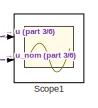
[diagram: root canvas - part 1/6, top left region]
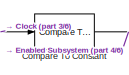
[diagram: root canvas - part 2/6, top center region]
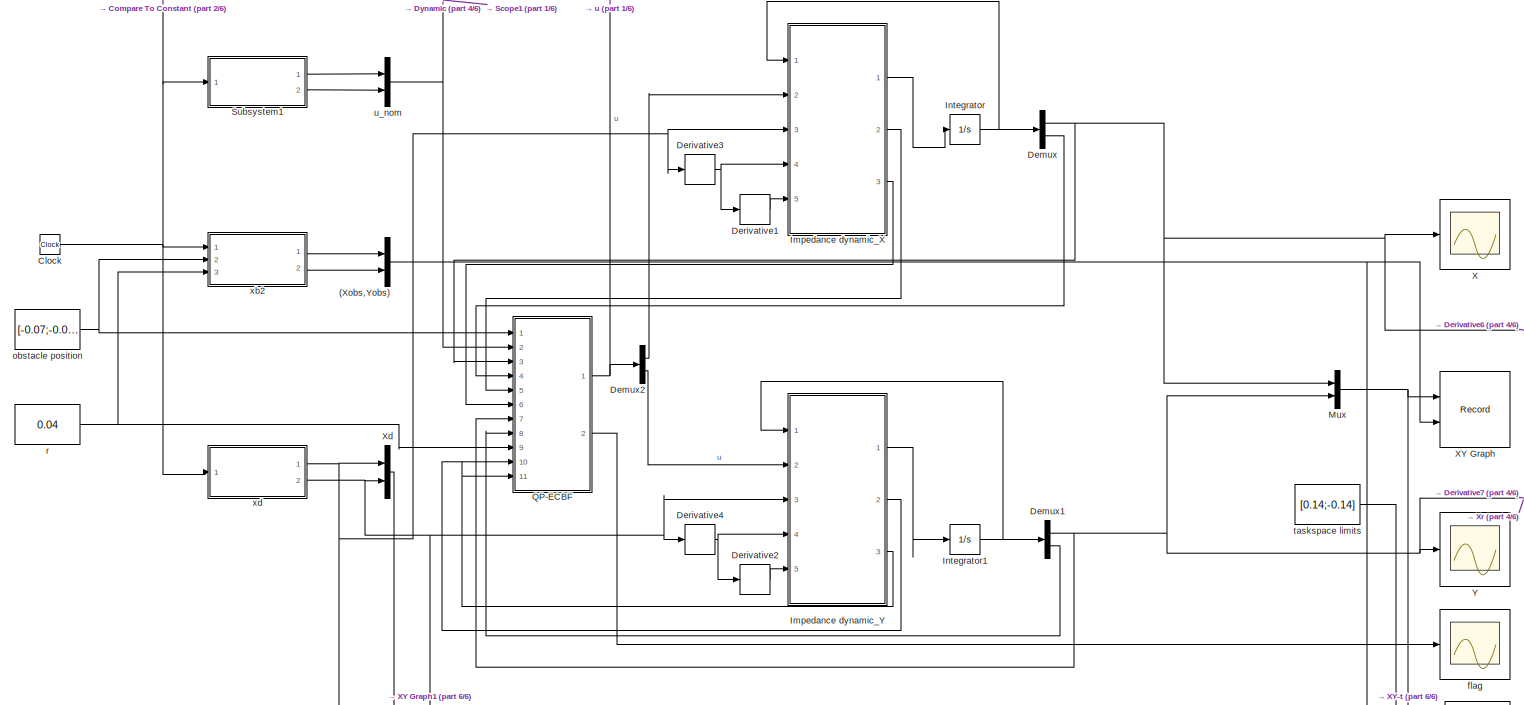
[diagram: root canvas - part 3/6, middle left region]
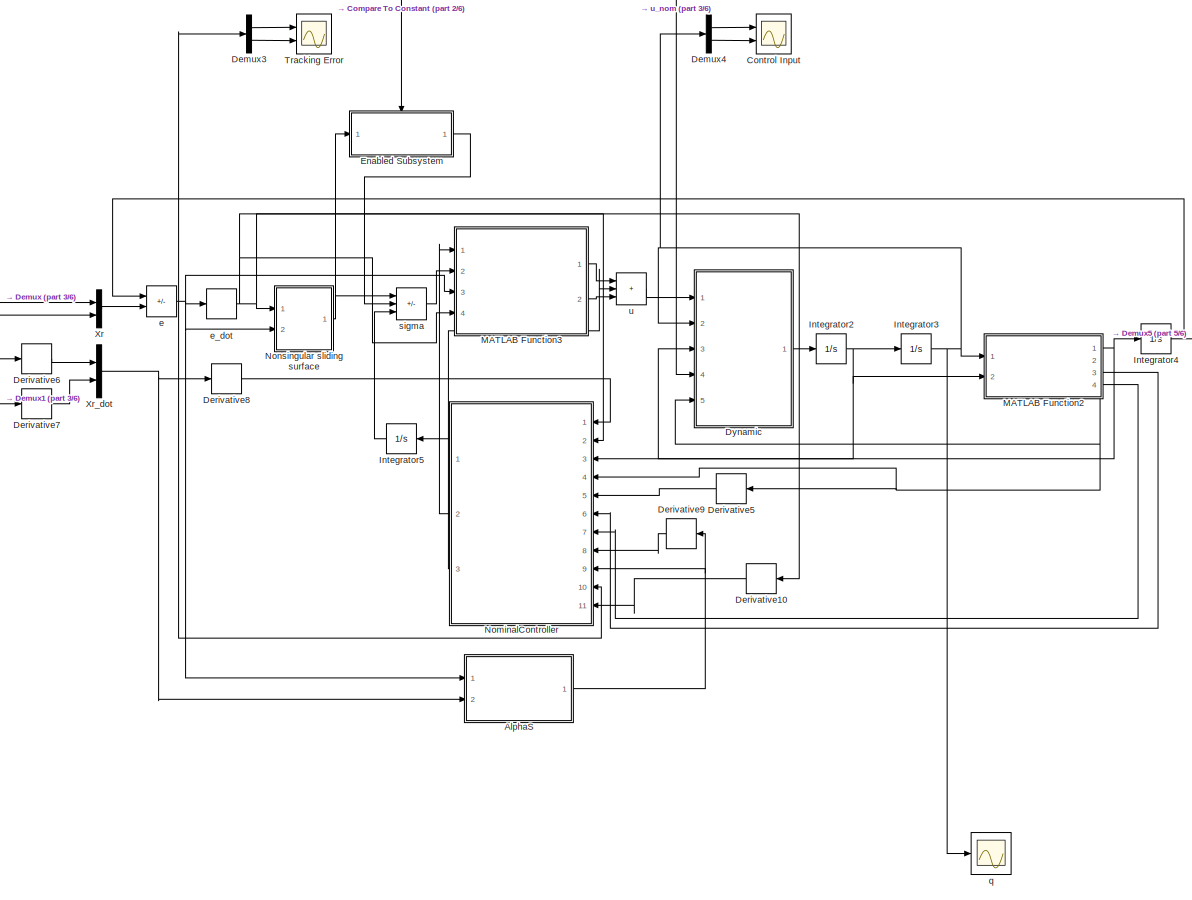
[diagram: root canvas - part 4/6, right side, full height]
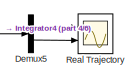
[diagram: root canvas - part 5/6, middle right region]
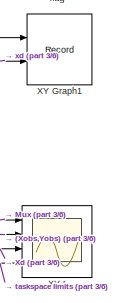
[diagram: root canvas - part 6/6, bottom center region]
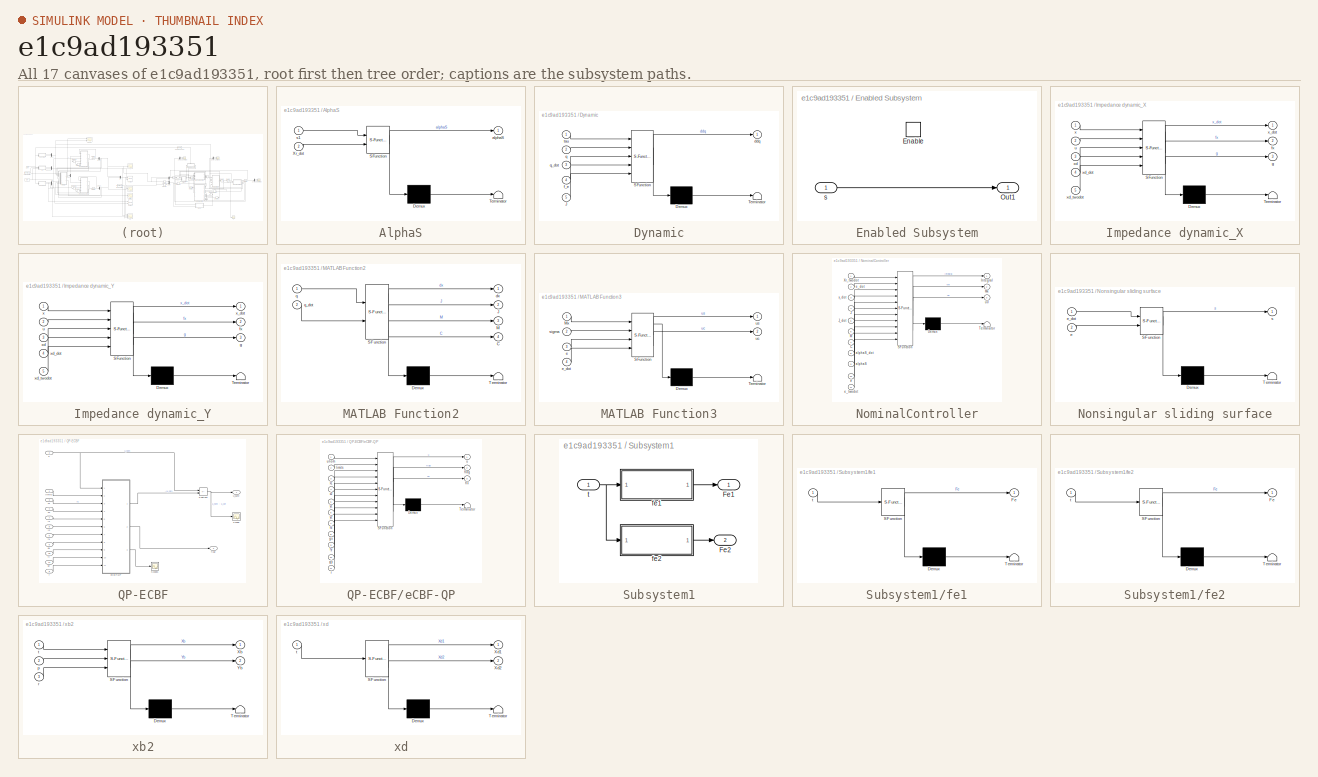
[diagram: thumbnail index - all 17 canvases of the model, root first then tree order]
MODEL slx_e1c9ad193351
KIND model
CONFIG AbsTol = auto
CONFIG EnableMultiTasking = off
CONFIG FixedStep = 0.01
CONFIG MaxStep = auto
CONFIG MinStep = auto
CONFIG RelTol = 1e-3
CONFIG SampleTimeConstraint = Unconstrained
CONFIG SolverName = ode4
CONFIG StartTime = 0.0
CONFIG StopTime = 30
BLOCK [Scope]  Tracking Error
  Floating = off
  NumInputPorts = 2
  Ports = [2]
  ScopeSpecificationString = Simulink.scopes.TimeScopeBlockCfg('CurrentConfiguration', extmgr.ConfigurationSet(extmgr.Configuration('Core','General UI',true),extmgr.Configuration('Core','Source UI',true),extmgr.Configuration('Sources','WiredSimulink',true,'DataLoggingVariableName','ScopeData1','DataLogging',true,'DataLoggingSaveFormat','StructureWithTime'),extmgr.Configuration('Visuals','Time Domain',true,'SerializedDisplays'...<+1520ch>
BLOCK [Mux] (Xobs,Yobs)
  DisplayOption = bar
  Inputs = 2
  NameLocation = left
  Ports = [2, 1]
BLOCK [SubSystem] AlphaS
  ErrorFcn = Stateflow.Translate.translate
  PermitHierarchicalResolution = ExplicitOnly
  Ports = [2, 1]
  RequestExecContextInheritance = off
  SFBlockType = MATLAB Function
  TreatAsAtomicUnit = on
BLOCK [Demux] AlphaS/ Demux 
  Outputs = 1
  Ports = [1, 1]
BLOCK [S-Function] AlphaS/ SFunction 
  EnableBusSupport = on
  FunctionName = sf_sfun
  PortCounts = [2 2]
  Ports = [2, 2]
  SFcnIsStateOwnerBlock = off
  SFunctionDeploymentMode = off
  Tag = Stateflow S-Function 9
BLOCK [Terminator] AlphaS/ Terminator 
BLOCK [Inport] AlphaS/Xr_dot
  Port = 2
BLOCK [Outport] AlphaS/alphaS
BLOCK [Inport] AlphaS/s1
BLOCK [Clock] Clock
BLOCK [Reference] Compare To Constant  REF=simulink/Logic and Bit
Operations/Compare
To Constant
  Ports = [1, 1]
  SourceBlock = simulink/Logic and Bit\nOperations/Compare\nTo Constant
  SourceProductBaseCode = SL
  SourceType = Compare To Constant
BLOCK [Scope] Control Input
  Floating = off
  NumInputPorts = 2
  Ports = [2]
  ScopeSpecificationString = Simulink.scopes.TimeScopeBlockCfg('CurrentConfiguration', extmgr.ConfigurationSet(extmgr.Configuration('Core','General UI',true),extmgr.Configuration('Core','Source UI',true),extmgr.Configuration('Sources','WiredSimulink',true,'DataLoggingVariableName','ScopeData2','DataLogging',true,'DataLoggingSaveFormat','StructureWithTime'),extmgr.Configuration('Visuals','Time Domain',true,'SerializedDisplays'...<+1522ch>
BLOCK [Demux] Demux
  Outputs = 2
  Ports = [1, 2]
BLOCK [Demux] Demux1
  Outputs = 2
  Ports = [1, 2]
BLOCK [Demux] Demux2
  Outputs = 2
  Ports = [1, 2]
BLOCK [Demux] Demux3
  Outputs = 2
  Ports = [1, 2]
BLOCK [Demux] Demux4
  Outputs = 2
  Ports = [1, 2]
BLOCK [Demux] Demux5
  Outputs = 2
  Ports = [1, 2]
BLOCK [Derivative] Derivative1
BLOCK [Derivative] Derivative10
  NameLocation = top
BLOCK [Derivative] Derivative2
BLOCK [Derivative] Derivative3
BLOCK [Derivative] Derivative4
BLOCK [Derivative] Derivative5
  NameLocation = top
BLOCK [Derivative] Derivative6
BLOCK [Derivative] Derivative7
BLOCK [Derivative] Derivative8
BLOCK [Derivative] Derivative9
  NameLocation = top
BLOCK [SubSystem] Dynamic
  ErrorFcn = Stateflow.Translate.translate
  PermitHierarchicalResolution = ExplicitOnly
  Ports = [5, 1]
  RequestExecContextInheritance = off
  SFBlockType = MATLAB Function
  TreatAsAtomicUnit = on
BLOCK [Demux] Dynamic/ Demux 
  Outputs = 1
  Ports = [1, 1]
BLOCK [S-Function] Dynamic/ SFunction 
  EnableBusSupport = on
  FunctionName = sf_sfun
  PortCounts = [5 2]
  Ports = [5, 2]
  SFcnIsStateOwnerBlock = off
  SFunctionDeploymentMode = off
  Tag = Stateflow S-Function 3
BLOCK [Terminator] Dynamic/ Terminator 
BLOCK [Inport] Dynamic/J
  Port = 5
BLOCK [Outport] Dynamic/ddq
BLOCK [Inport] Dynamic/f_e
  Port = 4
BLOCK [Inport] Dynamic/q
  Port = 2
BLOCK [Inport] Dynamic/q_dot
  Port = 3
BLOCK [Inport] Dynamic/tau
BLOCK [SubSystem] Enabled Subsystem
  Ports = [1, 1, 1]
  RequestExecContextInheritance = off
  TreatAsAtomicUnit = on
BLOCK [EnablePort] Enabled Subsystem/Enable
  Ports = []
BLOCK [Outport] Enabled Subsystem/Out1
  InitialOutput = 0
  VectorParamsAs1DForOutWhenUnconnected = off
BLOCK [Inport] Enabled Subsystem/s
BLOCK [SubSystem] Impedance dynamic_X
  ErrorFcn = Stateflow.Translate.translate
  PermitHierarchicalResolution = ExplicitOnly
  Ports = [5, 3]
  RequestExecContextInheritance = off
  SFBlockType = MATLAB Function
  TreatAsAtomicUnit = on
BLOCK [Demux] Impedance dynamic_X/ Demux 
  Outputs = 1
  Ports = [1, 1]
BLOCK [S-Function] Impedance dynamic_X/ SFunction 
  EnableBusSupport = on
  FunctionName = sf_sfun
  PortCounts = [5 4]
  Ports = [5, 4]
  SFcnIsStateOwnerBlock = off
  SFunctionDeploymentMode = off
  Tag = Stateflow S-Function 7
BLOCK [Terminator] Impedance dynamic_X/ Terminator 
BLOCK [Outport] Impedance dynamic_X/fx
  Port = 2
BLOCK [Outport] Impedance dynamic_X/g
  Port = 3
BLOCK [Inport] Impedance dynamic_X/u
  Port = 2
BLOCK [Inport] Impedance dynamic_X/x
BLOCK [Outport] Impedance dynamic_X/x_dot
BLOCK [Inport] Impedance dynamic_X/xd
  Port = 3
BLOCK [Inport] Impedance dynamic_X/xd_dot
  Port = 4
BLOCK [Inport] Impedance dynamic_X/xd_twodot
  Port = 5
BLOCK [SubSystem] Impedance dynamic_Y
  ErrorFcn = Stateflow.Translate.translate
  PermitHierarchicalResolution = ExplicitOnly
  Ports = [5, 3]
  RequestExecContextInheritance = off
  SFBlockType = MATLAB Function
  TreatAsAtomicUnit = on
BLOCK [Demux] Impedance dynamic_Y/ Demux 
  Outputs = 1
  Ports = [1, 1]
BLOCK [S-Function] Impedance dynamic_Y/ SFunction 
  EnableBusSupport = on
  FunctionName = sf_sfun
  PortCounts = [5 4]
  Ports = [5, 4]
  SFcnIsStateOwnerBlock = off
  SFunctionDeploymentMode = off
  Tag = Stateflow S-Function 1
BLOCK [Terminator] Impedance dynamic_Y/ Terminator 
BLOCK [Outport] Impedance dynamic_Y/fx
  Port = 2
BLOCK [Outport] Impedance dynamic_Y/g
  Port = 3
BLOCK [Inport] Impedance dynamic_Y/u
  Port = 2
BLOCK [Inport] Impedance dynamic_Y/x
BLOCK [Outport] Impedance dynamic_Y/x_dot
BLOCK [Inport] Impedance dynamic_Y/xd
  Port = 3
BLOCK [Inport] Impedance dynamic_Y/xd_dot
  Port = 4
BLOCK [Inport] Impedance dynamic_Y/xd_twodot
  Port = 5
BLOCK [Integrator] Integrator
  InitialCondition = [0.14;0]
  Ports = [1, 1]
BLOCK [Integrator] Integrator1
  InitialCondition = [0;0]
  Ports = [1, 1]
BLOCK [Integrator] Integrator2
  Ports = [1, 1]
BLOCK [Integrator] Integrator3
  InitialCondition = [0.5236;2.0944]
  Ports = [1, 1]
BLOCK [Integrator] Integrator4
  InitialCondition = [0.14;0]
  Ports = [1, 1]
BLOCK [Integrator] Integrator5
  InitialCondition = [0.0001;0.0001]
  NameLocation = top
  Ports = [1, 1]
BLOCK [SubSystem] MATLAB Function2
  ErrorFcn = Stateflow.Translate.translate
  PermitHierarchicalResolution = ExplicitOnly
  Ports = [2, 4]
  RequestExecContextInheritance = off
  SFBlockType = MATLAB Function
  TreatAsAtomicUnit = on
BLOCK [Demux] MATLAB Function2/ Demux 
  Outputs = 1
  Ports = [1, 1]
BLOCK [S-Function] MATLAB Function2/ SFunction 
  EnableBusSupport = on
  FunctionName = sf_sfun
  PortCounts = [2 5]
  Ports = [2, 5]
  SFcnIsStateOwnerBlock = off
  SFunctionDeploymentMode = off
  Tag = Stateflow S-Function 8
BLOCK [Terminator] MATLAB Function2/ Terminator 
BLOCK [Outport] MATLAB Function2/C
  Port = 4
BLOCK [Outport] MATLAB Function2/J
  Port = 2
BLOCK [Outport] MATLAB Function2/M
  Port = 3
BLOCK [Outport] MATLAB Function2/dx
BLOCK [Inport] MATLAB Function2/q
BLOCK [Inport] MATLAB Function2/q_dot
  Port = 2
BLOCK [SubSystem] MATLAB Function3
  ErrorFcn = Stateflow.Translate.translate
  PermitHierarchicalResolution = ExplicitOnly
  Ports = [4, 2]
  RequestExecContextInheritance = off
  SFBlockType = MATLAB Function
  TreatAsAtomicUnit = on
BLOCK [Demux] MATLAB Function3/ Demux 
  Outputs = 1
  Ports = [1, 1]
BLOCK [S-Function] MATLAB Function3/ SFunction 
  EnableBusSupport = on
  FunctionName = sf_sfun
  PortCounts = [4 3]
  Ports = [4, 3]
  SFcnIsStateOwnerBlock = off
  SFunctionDeploymentMode = off
  Tag = Stateflow S-Function 10
BLOCK [Terminator] MATLAB Function3/ Terminator 
BLOCK [Inport] MATLAB Function3/Mx
BLOCK [Inport] MATLAB Function3/e
  Port = 3
BLOCK [Inport] MATLAB Function3/e_dot
  Port = 4
BLOCK [Inport] MATLAB Function3/sigma
  Port = 2
BLOCK [Outport] MATLAB Function3/uc
  Port = 2
BLOCK [Outport] MATLAB Function3/us
BLOCK [Mux] Mux
  DisplayOption = bar
  Inputs = 2
  Ports = [2, 1]
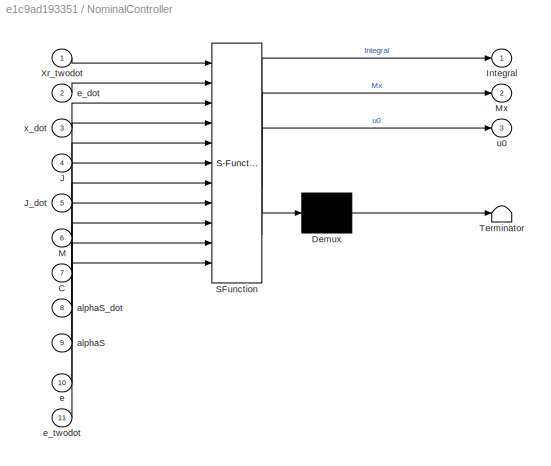
BLOCK [SubSystem] NominalController
  ErrorFcn = Stateflow.Translate.translate
  NameLocation = top
  PermitHierarchicalResolution = ExplicitOnly
  Ports = [11, 3]
  RequestExecContextInheritance = off
  SFBlockType = MATLAB Function
  TreatAsAtomicUnit = on
BLOCK [Demux] NominalController/ Demux 
  Outputs = 1
  Ports = [1, 1]
BLOCK [S-Function] NominalController/ SFunction 
  EnableBusSupport = on
  FunctionName = sf_sfun
  PortCounts = [11 4]
  Ports = [11, 4]
  SFcnIsStateOwnerBlock = off
  SFunctionDeploymentMode = off
  Tag = Stateflow S-Function 11
BLOCK [Terminator] NominalController/ Terminator 
BLOCK [Inport] NominalController/C
  Port = 7
BLOCK [Outport] NominalController/Integral
BLOCK [Inport] NominalController/J
  Port = 4
BLOCK [Inport] NominalController/J_dot
  Port = 5
BLOCK [Inport] NominalController/M
  Port = 6
BLOCK [Outport] NominalController/Mx
  Port = 2
BLOCK [Inport] NominalController/Xr_twodot
BLOCK [Inport] NominalController/alphaS
  Port = 9
BLOCK [Inport] NominalController/alphaS_dot
  Port = 8
BLOCK [Inport] NominalController/e
  Port = 10
BLOCK [Inport] NominalController/e_dot
  Port = 2
BLOCK [Inport] NominalController/e_twodot
  Port = 11
BLOCK [Outport] NominalController/u0
  Port = 3
BLOCK [Inport] NominalController/x_dot
  Port = 3
BLOCK [SubSystem] Nonsingular sliding surface
  ErrorFcn = Stateflow.Translate.translate
  PermitHierarchicalResolution = ExplicitOnly
  Ports = [2, 1]
  RequestExecContextInheritance = off
  SFBlockType = MATLAB Function
  TreatAsAtomicUnit = on
BLOCK [Demux] Nonsingular sliding surface/ Demux 
  Outputs = 1
  Ports = [1, 1]
BLOCK [S-Function] Nonsingular sliding surface/ SFunction 
  EnableBusSupport = on
  FunctionName = sf_sfun
  PortCounts = [2 2]
  Ports = [2, 2]
  SFcnIsStateOwnerBlock = off
  SFunctionDeploymentMode = off
  Tag = Stateflow S-Function 12
BLOCK [Terminator] Nonsingular sliding surface/ Terminator 
BLOCK [Inport] Nonsingular sliding surface/e
  Port = 2
BLOCK [Inport] Nonsingular sliding surface/e_dot
BLOCK [Outport] Nonsingular sliding surface/s
BLOCK [SubSystem] QP-ECBF
  Ports = [11, 2]
  RequestExecContextInheritance = off
BLOCK [Scope] QP-ECBF/Scope
  Floating = off
  NumInputPorts = 1
  Ports = [1]
  ScopeSpecificationString = Simulink.scopes.TimeScopeBlockCfg('CurrentConfiguration', extmgr.ConfigurationSet(extmgr.Configuration('Core','General UI',true),extmgr.Configuration('Core','Source UI',true),extmgr.Configuration('Sources','WiredSimulink',true,'DataLoggingVariableName','ScopeData1'),extmgr.Configuration('Visuals','Time Domain',true,'SerializedDisplays',{struct('MinYLimReal','-74.07676','MaxYLimReal','62.38981','YL...<+1473ch>
BLOCK [Scope] QP-ECBF/Scope1
  Floating = off
  NumInputPorts = 1
  Ports = [1]
  ScopeSpecificationString = Simulink.scopes.TimeScopeBlockCfg('CurrentConfiguration', extmgr.ConfigurationSet(extmgr.Configuration('Core','General UI',true),extmgr.Configuration('Core','Source UI',true),extmgr.Configuration('Sources','WiredSimulink',true,'DataLoggingVariableName','ScopeData2'),extmgr.Configuration('Visuals','Time Domain',true,'SerializedDisplays',{struct('MinYLimReal','-0.00755','MaxYLimReal','0.06731','YLab...<+1444ch>
BLOCK [Sum] QP-ECBF/Subtract
  IconShape = rectangular
  Inputs = +-
  Ports = [2, 1]
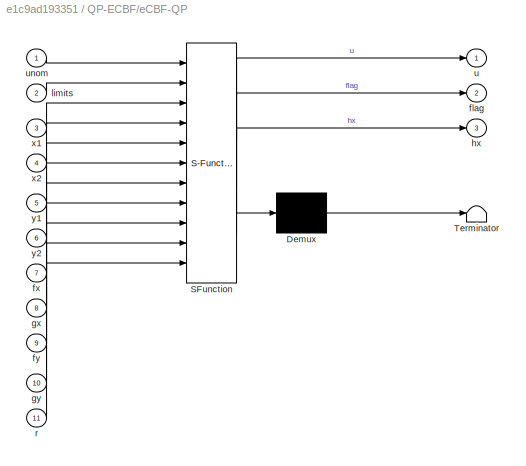
BLOCK [SubSystem] QP-ECBF/eCBF-QP
  ErrorFcn = Stateflow.Translate.translate
  PermitHierarchicalResolution = ExplicitOnly
  Ports = [11, 3]
  RequestExecContextInheritance = off
  SFBlockType = MATLAB Function
  TreatAsAtomicUnit = on
BLOCK [Demux] QP-ECBF/eCBF-QP/ Demux 
  Outputs = 1
  Ports = [1, 1]
BLOCK [S-Function] QP-ECBF/eCBF-QP/ SFunction 
  EnableBusSupport = on
  FunctionName = sf_sfun
  PortCounts = [11 4]
  Ports = [11, 4]
  SFcnIsStateOwnerBlock = off
  SFunctionDeploymentMode = off
  Tag = Stateflow S-Function 6
BLOCK [Terminator] QP-ECBF/eCBF-QP/ Terminator 
BLOCK [Outport] QP-ECBF/eCBF-QP/flag
  Port = 2
BLOCK [Inport] QP-ECBF/eCBF-QP/fx
  Port = 7
BLOCK [Inport] QP-ECBF/eCBF-QP/fy
  Port = 9
BLOCK [Inport] QP-ECBF/eCBF-QP/gx
  Port = 8
BLOCK [Inport] QP-ECBF/eCBF-QP/gy
  Port = 10
BLOCK [Outport] QP-ECBF/eCBF-QP/hx
  Port = 3
BLOCK [Inport] QP-ECBF/eCBF-QP/limits
  Port = 2
BLOCK [Inport] QP-ECBF/eCBF-QP/r
  Port = 11
BLOCK [Outport] QP-ECBF/eCBF-QP/u
BLOCK [Inport] QP-ECBF/eCBF-QP/unom
BLOCK [Inport] QP-ECBF/eCBF-QP/x1
  Port = 3
BLOCK [Inport] QP-ECBF/eCBF-QP/x2
  Port = 4
BLOCK [Inport] QP-ECBF/eCBF-QP/y1
  Port = 5
BLOCK [Inport] QP-ECBF/eCBF-QP/y2
  Port = 6
BLOCK [Outport] QP-ECBF/flag
  Port = 2
BLOCK [Inport] QP-ECBF/fx
  Port = 5
BLOCK [Inport] QP-ECBF/fy
  Port = 10
BLOCK [Inport] QP-ECBF/gx
  Port = 6
BLOCK [Inport] QP-ECBF/gy
  Port = 11
BLOCK [Inport] QP-ECBF/limits
  NameLocation = left
BLOCK [Inport] QP-ECBF/r
  Port = 9
BLOCK [Inport] QP-ECBF/u
  NameLocation = left
  Port = 2
BLOCK [Outport] QP-ECBF/u_safe
  NameLocation = right
BLOCK [Inport] QP-ECBF/x1
  Port = 3
BLOCK [Inport] QP-ECBF/x2
  Port = 4
BLOCK [Inport] QP-ECBF/y1
  Port = 7
BLOCK [Inport] QP-ECBF/y2
  Port = 8
BLOCK [Scope] Real Trajectory
  Floating = off
  NumInputPorts = 2
  Ports = [2]
  ScopeSpecificationString = Simulink.scopes.TimeScopeBlockCfg('CurrentConfiguration', extmgr.ConfigurationSet(extmgr.Configuration('Core','General UI',true),extmgr.Configuration('Core','Source UI',true),extmgr.Configuration('Sources','WiredSimulink',true,'DataLoggingVariableName','ScopeData6','DataLogging',true,'DataLoggingSaveFormat','StructureWithTime'),extmgr.Configuration('Visuals','Time Domain',true,'SerializedDisplays'...<+1514ch>
BLOCK [Scope] Scope1
  Floating = off
  NumInputPorts = 2
  Ports = [2]
  ScopeSpecificationString = Simulink.scopes.TimeScopeBlockCfg('CurrentConfiguration', extmgr.ConfigurationSet(extmgr.Configuration('Core','General UI',true),extmgr.Configuration('Core','Source UI',true),extmgr.Configuration('Sources','WiredSimulink',true,'DataLoggingVariableName','fe','DataLogging',true,'DataLoggingSaveFormat','StructureWithTime'),extmgr.Configuration('Visuals','Time Domain',true,'SerializedDisplays',{struct...<+1497ch>
BLOCK [SubSystem] Subsystem1
  Ports = [1, 2]
  RequestExecContextInheritance = off
BLOCK [Outport] Subsystem1/Fe1
BLOCK [Outport] Subsystem1/Fe2
  Port = 2
BLOCK [SubSystem] Subsystem1/fe1
  ErrorFcn = Stateflow.Translate.translate
  PermitHierarchicalResolution = ExplicitOnly
  Ports = [1, 1]
  RequestExecContextInheritance = off
  SFBlockType = MATLAB Function
  TreatAsAtomicUnit = on
BLOCK [Demux] Subsystem1/fe1/ Demux 
  Outputs = 1
  Ports = [1, 1]
BLOCK [S-Function] Subsystem1/fe1/ SFunction 
  EnableBusSupport = on
  FunctionName = sf_sfun
  PortCounts = [1 2]
  Ports = [1, 2]
  SFcnIsStateOwnerBlock = off
  SFunctionDeploymentMode = off
  Tag = Stateflow S-Function 2
BLOCK [Terminator] Subsystem1/fe1/ Terminator 
BLOCK [Outport] Subsystem1/fe1/Fe
BLOCK [Inport] Subsystem1/fe1/t
BLOCK [SubSystem] Subsystem1/fe2
  ErrorFcn = Stateflow.Translate.translate
  PermitHierarchicalResolution = ExplicitOnly
  Ports = [1, 1]
  RequestExecContextInheritance = off
  SFBlockType = MATLAB Function
  TreatAsAtomicUnit = on
BLOCK [Demux] Subsystem1/fe2/ Demux 
  Outputs = 1
  Ports = [1, 1]
BLOCK [S-Function] Subsystem1/fe2/ SFunction 
  EnableBusSupport = on
  FunctionName = sf_sfun
  PortCounts = [1 2]
  Ports = [1, 2]
  SFcnIsStateOwnerBlock = off
  SFunctionDeploymentMode = off
  Tag = Stateflow S-Function 4
BLOCK [Terminator] Subsystem1/fe2/ Terminator 
BLOCK [Outport] Subsystem1/fe2/Fe
BLOCK [Inport] Subsystem1/fe2/t
BLOCK [Inport] Subsystem1/t
BLOCK [Scope] X
  Floating = off
  NumInputPorts = 1
  Ports = [1]
  ScopeSpecificationString = Simulink.scopes.TimeScopeBlockCfg('CurrentConfiguration', extmgr.ConfigurationSet(extmgr.Configuration('Core','General UI',true),extmgr.Configuration('Core','Source UI',true),extmgr.Configuration('Sources','WiredSimulink',true,'DataLoggingVariableName','ScopeData1'),extmgr.Configuration('Visuals','Time Domain',true,'SerializedDisplays',{struct('MinYLimReal','-0.1721','MaxYLimReal','0.17786','YLabe...<+1395ch>
BLOCK [Record] XY Graph
  CompatibilityTag = XY
  FileSettingsInternal = {"entries":[{"content":{"excelSettings":{"content":{},"type":"Streamout.ExcelSettings"}},"type":"Streamout.FileSettingStorage","uuid":"41ee0d73-6c9a-4a32-9ae2-bb77aa5eb9da"}],"packageUris":["http://schema.mathworks.com/mf0/streamout_blocks/R2020a"],"version":"1.0"}
  Layout = [1 1]
  Ports = [2]
  SignalsInternal = {"entries":[{"content":{"signals":[{"content":{"blockPath":["Safety_filter_obstacle_run_FxTISMC/XY Graph"],"channel":[],"dimensions":[2],"domain":"Safety_filter_obstacle_run_FxTISMC/XY Graph","hasChildren":true,"lineColor":"#0072bd","plots":[],"port":1,"sid":[""],"signalID":13917,"signalName":"Mux"},"type":"RecordBlkView.Signal","uuid":"9d963ae4-670a-439a-a92f-b214391dedbc"},{"content":{"blockPath...<+1893ch>
  VisualizationBindings = {"xyplotplugin":{"info":[{"series":[{"bindingParametersList":[{"parameter":"X-Axis","signalID":13918,"signalName":"Mux(1)"},{"parameter":"Y-Axis","signalID":13935,"signalName":"Mux(2)"}],"seriesID":62594},{"bindingParametersList":[{"parameter":"X-Axis","signalID":13923,"signalName":"(Xobs,Yobs)(1)"},{"parameter":"Y-Axis","signalID":13936,"signalName":"(Xobs,Yobs)(2)"}],"seriesID":13492}],"subplotI...<+8ch>
  st = -1
BLOCK [Record] XY Graph1
  CompatibilityTag = XY
  FileSettingsInternal = {"entries":[{"content":{"excelSettings":{"content":{},"type":"Streamout.ExcelSettings"}},"type":"Streamout.FileSettingStorage","uuid":"947f9a06-cda0-4a39-953d-72ad5f3dd9f2"}],"packageUris":["http://schema.mathworks.com/mf0/streamout_blocks/R2020a"],"version":"1.0"}
  Layout = [1 1]
  Ports = [2]
  SignalsInternal = {"entries":[{"content":{"signals":[{"content":{"blockPath":["Safety_filter_obstacle_run_FxTISMC/XY Graph1"],"channel":[],"dimensions":[1],"domain":"Safety_filter_obstacle_run_FxTISMC/XY Graph1","lineColor":"#a2142f","plots":[1],"port":1,"sid":[""],"signalID":13927,"signalName":"xd:1"},"type":"RecordBlkView.Signal","uuid":"bb191c1c-9b05-4e6a-a985-f226d7343dd8"},{"content":{"blockPath":["Safety_filt...<+467ch>
  VisualizationBindings = {"xyplotplugin":{"info":[{"series":[{"bindingParametersList":[{"parameter":"X-Axis","signalID":13927,"signalName":"xd:1"},{"parameter":"Y-Axis","signalID":13931,"signalName":"xd:2"}],"seriesID":52353}],"subplotID":1}]}}
BLOCK [Scope] XY-t
  Floating = off
  NumInputPorts = 4
  Ports = [4]
  ScopeSpecificationString = Simulink.scopes.TimeScopeBlockCfg('CurrentConfiguration', extmgr.ConfigurationSet(extmgr.Configuration('Core','General UI',true),extmgr.Configuration('Core','Source UI',true),extmgr.Configuration('Sources','WiredSimulink',true,'DataLoggingVariableName','XYdata','DataLogging',true,'DataLoggingSaveFormat','StructureWithTime'),extmgr.Configuration('Visuals','Time Domain',true,'SerializedDisplays',{st...<+1579ch>
BLOCK [Mux] Xd
  DisplayOption = bar
  Inputs = 2
  NameLocation = left
  Ports = [2, 1]
BLOCK [Mux] Xr
  DisplayOption = bar
  Inputs = 2
  Ports = [2, 1]
BLOCK [Mux] Xr_dot
  DisplayOption = bar
  Inputs = 2
  Ports = [2, 1]
BLOCK [Scope] Y
  Floating = off
  NumInputPorts = 1
  Ports = [1]
  ScopeSpecificationString = Simulink.scopes.TimeScopeBlockCfg('CurrentConfiguration', extmgr.ConfigurationSet(extmgr.Configuration('Core','General UI',true),extmgr.Configuration('Core','Source UI',true),extmgr.Configuration('Sources','WiredSimulink',true,'DataLoggingVariableName','ScopeData3'),extmgr.Configuration('Visuals','Time Domain',true,'SerializedDisplays',{struct('MinYLimReal','-0.13895','MaxYLimReal','0.17141','YLab...<+1398ch>
BLOCK [Sum] e
  IconShape = rectangular
  Inputs = +-
  Ports = [2, 1]
BLOCK [Derivative] e_dot
BLOCK [Scope] flag
  Floating = off
  NumInputPorts = 1
  Ports = [1]
  ScopeSpecificationString = Simulink.scopes.TimeScopeBlockCfg('CurrentConfiguration', extmgr.ConfigurationSet(extmgr.Configuration('Core','General UI',true),extmgr.Configuration('Core','Source UI',true),extmgr.Configuration('Sources','WiredSimulink',true,'DataLoggingVariableName','ScopeData3'),extmgr.Configuration('Visuals','Time Domain',true,'SerializedDisplays',{struct('MinYLimReal','0.9','MaxYLimReal','1.1','YLabelReal','...<+1374ch>
BLOCK [Constant] obstacle position
  NameLocation = top
  SampleTime = -1
  Value = [-0.07;-0.07]
  VectorParams1D = off
BLOCK [Scope] q
  Floating = off
  NumInputPorts = 1
  Ports = [1]
  ScopeSpecificationString = Simulink.scopes.TimeScopeBlockCfg('CurrentConfiguration', extmgr.ConfigurationSet(extmgr.Configuration('Core','General UI',true),extmgr.Configuration('Core','Source UI',true),extmgr.Configuration('Sources','WiredSimulink',true,'DataLoggingVariableName','q','DataLogging',true,'DataLoggingSaveFormat','StructureWithTime'),extmgr.Configuration('Visuals','Time Domain',true,'SerializedDisplays',{struct(...<+1479ch>
BLOCK [Constant] r
  NameLocation = top
  SampleTime = -1
  Value = 0.04
  VectorParams1D = off
BLOCK [Sum] sigma
  IconShape = rectangular
  Inputs = +--
  Ports = [3, 1]
BLOCK [Constant] taskspace limits
  NameLocation = top
  SampleTime = -1
  Value = [0.14;-0.14]
  VectorParams1D = off
BLOCK [Sum] u
  IconShape = rectangular
  Inputs = +++
  Ports = [3, 1]
BLOCK [Mux] u_nom
  DisplayOption = bar
  Inputs = 2
  NameLocation = left
  Ports = [2, 1]
BLOCK [SubSystem] xb2
  ErrorFcn = Stateflow.Translate.translate
  PermitHierarchicalResolution = ExplicitOnly
  Ports = [3, 2]
  RequestExecContextInheritance = off
  SFBlockType = MATLAB Function
  TreatAsAtomicUnit = on
BLOCK [Demux] xb2/ Demux 
  Outputs = 1
  Ports = [1, 1]
BLOCK [S-Function] xb2/ SFunction 
  EnableBusSupport = on
  FunctionName = sf_sfun
  PortCounts = [3 3]
  Ports = [3, 3]
  SFcnIsStateOwnerBlock = off
  SFunctionDeploymentMode = off
  Tag = Stateflow S-Function 13
BLOCK [Terminator] xb2/ Terminator 
BLOCK [Outport] xb2/Xb
BLOCK [Outport] xb2/Yb
  Port = 2
BLOCK [Inport] xb2/p
  Port = 2
BLOCK [Inport] xb2/r
  Port = 3
BLOCK [Inport] xb2/t
BLOCK [SubSystem] xd
  ErrorFcn = Stateflow.Translate.translate
  PermitHierarchicalResolution = ExplicitOnly
  Ports = [1, 2]
  RequestExecContextInheritance = off
  SFBlockType = MATLAB Function
  TreatAsAtomicUnit = on
BLOCK [Demux] xd/ Demux 
  Outputs = 1
  Ports = [1, 1]
BLOCK [S-Function] xd/ SFunction 
  EnableBusSupport = on
  FunctionName = sf_sfun
  PortCounts = [1 3]
  Ports = [1, 3]
  SFcnIsStateOwnerBlock = off
  SFunctionDeploymentMode = off
  Tag = Stateflow S-Function 5
BLOCK [Terminator] xd/ Terminator 
BLOCK [Outport] xd/Xd1
BLOCK [Outport] xd/Xd2
  Port = 2
BLOCK [Inport] xd/t
NET (Xobs,Yobs):1 -> XY Graph:2, XY-t:2
NET AlphaS:1 -> Derivative9:1, NominalController:9
NET Clock:1 -> Compare To Constant:1, Subsystem1:1, xb2:1, xd:1
LINE Compare To Constant:1 -> Enabled Subsystem:enable
NET Demux1:1 -> Derivative7:1, Mux:2, QP-ECBF:7, Xr:2, Y:1
LINE Demux1:2 -> QP-ECBF:8
LINE Demux2:1 -> Impedance dynamic_X:2
LINE Demux2:2 -> Impedance dynamic_Y:2
LINE Demux3:1 ->  Tracking Error:1
LINE Demux3:2 ->  Tracking Error:2
LINE Demux4:1 -> Control Input:1
LINE Demux4:2 -> Control Input:2
LINE Demux5:1 -> Real Trajectory:1
LINE Demux5:2 -> Real Trajectory:2
NET Demux:1 -> Derivative6:1, Mux:1, QP-ECBF:3, X:1, Xr:1
LINE Demux:2 -> QP-ECBF:4
LINE Derivative10:1 -> NominalController:11
LINE Derivative1:1 -> Impedance dynamic_X:5
LINE Derivative2:1 -> Impedance dynamic_Y:5
NET Derivative3:1 -> Derivative1:1, Impedance dynamic_X:4
NET Derivative4:1 -> Derivative2:1, Impedance dynamic_Y:4
LINE Derivative5:1 -> NominalController:5
LINE Derivative6:1 -> Xr_dot:1
LINE Derivative7:1 -> Xr_dot:2
LINE Derivative8:1 -> NominalController:1
LINE Derivative9:1 -> NominalController:8
LINE Dynamic:1 -> Integrator2:1
LINE Enabled Subsystem/s:1 -> Enabled Subsystem/Out1:1
LINE Enabled Subsystem:1 -> sigma:2
LINE Impedance dynamic_X:1 -> Integrator:1
LINE Impedance dynamic_X:2 -> QP-ECBF:5
LINE Impedance dynamic_X:3 -> QP-ECBF:6
LINE Impedance dynamic_Y:1 -> Integrator1:1
LINE Impedance dynamic_Y:2 -> QP-ECBF:10
LINE Impedance dynamic_Y:3 -> QP-ECBF:11
NET Integrator1:1 -> Demux1:1, Impedance dynamic_Y:1
NET Integrator2:1 -> Dynamic:3, Integrator3:1, MATLAB Function2:2
NET Integrator3:1 -> Demux4:1, Dynamic:2, MATLAB Function2:1, q:1
NET Integrator4:1 -> Demux5:1, e:1
LINE Integrator5:1 -> sigma:3
NET Integrator:1 -> Demux:1, Impedance dynamic_X:1
NET MATLAB Function2:1 -> Integrator4:1, NominalController:3
NET MATLAB Function2:2 -> Derivative5:1, Dynamic:5, NominalController:4
LINE MATLAB Function2:3 -> NominalController:6
LINE MATLAB Function2:4 -> NominalController:7
LINE MATLAB Function3:1 -> u:1
LINE MATLAB Function3:2 -> u:3
NET Mux:1 -> XY Graph:1, XY-t:1
LINE NominalController:1 -> Integrator5:1
LINE NominalController:2 -> MATLAB Function3:1
LINE NominalController:3 -> u:2
NET Nonsingular sliding surface:1 -> Enabled Subsystem:1, sigma:1
NET QP-ECBF/Subtract:1 -> QP-ECBF/Scope:1, QP-ECBF/u_safe:1
LINE QP-ECBF/eCBF-QP:1 -> QP-ECBF/Subtract:2
LINE QP-ECBF/eCBF-QP:2 -> QP-ECBF/flag:1
LINE QP-ECBF/eCBF-QP:3 -> QP-ECBF/Scope1:1
LINE QP-ECBF/fx:1 -> QP-ECBF/eCBF-QP:7
LINE QP-ECBF/fy:1 -> QP-ECBF/eCBF-QP:9
LINE QP-ECBF/gx:1 -> QP-ECBF/eCBF-QP:8
LINE QP-ECBF/gy:1 -> QP-ECBF/eCBF-QP:10
LINE QP-ECBF/limits:1 -> QP-ECBF/eCBF-QP:2
LINE QP-ECBF/r:1 -> QP-ECBF/eCBF-QP:11
NET QP-ECBF/u:1 -> QP-ECBF/Subtract:1, QP-ECBF/eCBF-QP:1
LINE QP-ECBF/x1:1 -> QP-ECBF/eCBF-QP:3
LINE QP-ECBF/x2:1 -> QP-ECBF/eCBF-QP:4
LINE QP-ECBF/y1:1 -> QP-ECBF/eCBF-QP:5
LINE QP-ECBF/y2:1 -> QP-ECBF/eCBF-QP:6
NET QP-ECBF:1 -> Demux2:1, Scope1:1
LINE QP-ECBF:2 -> flag:1
LINE Subsystem1/fe1:1 -> Subsystem1/Fe1:1
LINE Subsystem1/fe2:1 -> Subsystem1/Fe2:1
NET Subsystem1/t:1 -> Subsystem1/fe1:1, Subsystem1/fe2:1
LINE Subsystem1:1 -> u_nom:1
LINE Subsystem1:2 -> u_nom:2
LINE Xd:1 -> XY-t:3
LINE Xr:1 -> e:2
NET Xr_dot:1 -> AlphaS:2, Derivative8:1
NET e:1 -> AlphaS:1, Demux3:1, MATLAB Function3:3, NominalController:10, Nonsingular sliding surface:2, e_dot:1
NET e_dot:1 -> Derivative10:1, MATLAB Function3:4, NominalController:2, Nonsingular sliding surface:1
NET obstacle position:1 -> QP-ECBF:1, xb2:2
NET r:1 -> QP-ECBF:9, xb2:3
LINE sigma:1 -> MATLAB Function3:2
LINE taskspace limits:1 -> XY-t:4
LINE u:1 -> Dynamic:1
NET u_nom:1 -> Dynamic:4, QP-ECBF:2, Scope1:2
LINE xb2:1 -> (Xobs,Yobs):1
LINE xb2:2 -> (Xobs,Yobs):2
NET xd:1 -> Derivative3:1, Impedance dynamic_X:3, XY Graph1:1, Xd:1
NET xd:2 -> Derivative4:1, Impedance dynamic_Y:3, XY Graph1:2, Xd:2
note: NET lines group one-source signal fan-out (src -> all destinations, sorted); 1:1 wires keep LINE
CHART MATLAB Function2 states=1 transitions=1
  STATE_LABEL 'eML_blk_kernel()'
  STATE_LABEL 'SCRIPT:\nfunction [dx,J,M,C]  = JointTwoTask(q,q_dot)\nL = [0.3, 0.3];\nm = [1.5, 1];\n\nM = [m(2)*L(2)^2+2*m(2)*L(1)*L(2)*cos(q(2))+(m(1)+m(2))*L(1)^2, m(2)*L(2)^2+m(2)*L(1)*L(2)*cos(q(2));\n    m(2)*L(2)^2+m(2)*L(1)*L(2)*cos(q(2)), m(2)*L(2)^2];\nC = [-2*m(2)*L(1)*L(2)*sin(q(2))*q_dot(2), -m(2)*L(1)*L(2)*sin(q(2)); \n    m(2)*L(1)*L(2)*sin(q(2))*q_dot(1), 0];\nJ = [-L(1)*sin(q(1))-L(2)*sin(q(1)+q(2)), -L...<+100ch>'
CHART AlphaS states=1 transitions=1
  STATE_LABEL 'eML_blk_kernel()'
  STATE_LABEL 'SCRIPT:\nfunction alphaS = AlphaS(s1,Xr_dot)\n\nk1=3;\nk2=20;\nk3=50;\n\nalpha=5/7;\nbeta=5/3;\n\nalphaS = -(k1.*s1 + k2.*abs(s1).^alpha.*sign(s1) + k3.*abs(s1).^beta.*sign(s1)) + Xr_dot;\n\nend\n'
CHART MATLAB Function3 states=1 transitions=1
  STATE_LABEL 'eML_blk_kernel()'
  STATE_LABEL 'SCRIPT:\nfunction [us,uc] = ISMC_Controller(Mx,sigma,e,e_dot)\n\nK_gain=0.001;\nk1=20;\nk2=50;\nalpha=5/3;\nbeta=5/7;\nMxx=pinv(Mx);\ngamma = 5/7;\nus = -inv(Mx)*((K_gain+0.001)*sign(sigma) + k1*abs(sigma).^alpha.*sign(sigma) + k2*abs(sigma).^beta.*sign(sigma));\n% uc = -Mxx*k2^gamma*(abs(e_dot+k1*abs(e).^alpha.*sign(e)).^(1/gamma-1)).*e_dot;\nuc = 0;\nend\n'
CHART NominalController states=1 transitions=1
  STATE_LABEL 'eML_blk_kernel()'
  STATE_LABEL "SCRIPT:\nfunction [Integral,Mx,u0] = NominalController(Xr_twodot,e_dot,x_dot,J,J_dot,M,C,alphaS_dot,alphaS,e,e_twodot)\n\nMx = inv(J')*M*inv(J);\nCx = inv(J')*(C-(M*inv(J)*J_dot))*inv(J);\n\n%% PD Controller\n% Kp=35;\n% Kd=400;\n% f=Mx*(Kp*(Xr-x)+Kd*(Xr_dot-x_dot)) + Cx*x_dot;\n% u0=(J')*f;\n\n%% Fixed-time backstepping control\nk8=3;\nk9=20;\nk10=50;\nalpha=5/3;\nbeta=5/7;\ngamma = 5/7;\n\ns2 = x_dot - alphaS;\n\nf0 ...<+544ch>"
CHART Nonsingular sliding surface states=1 transitions=1
  STATE_LABEL 'eML_blk_kernel()'
  STATE_LABEL 'SCRIPT:\nfunction s = S(e_dot,e)\n\nk1=20;\nk2=50;\nalpha=5/3;\nbeta=5/7;\ngamma = 5/7;\n\ns = e + (1/k2^(gamma)).*abs(e_dot+k1*abs(e).^alpha.*sign(e)).^(1/gamma).*sign(e_dot+k1*abs(e).^alpha.*sign(e));\n\nend\n'
CHART xb2 states=1 transitions=1
  STATE_LABEL 'eML_blk_kernel()'
  STATE_LABEL 'SCRIPT:\nfunction [Xb,Yb]  = Obstacles_traj(t,p,r)\n\nXb =  p(1) + r*cos(t);\nYb =  p(2) + r*sin(t);\n    \nend'
CHART Impedance dynamic_Y states=1 transitions=1
  STATE_LABEL 'eML_blk_kernel()'
  STATE_LABEL 'SCRIPT:\nfunction [x_dot,fx,g] = System(x,u,xd,xd_dot,xd_twodot)\n\n    km = 20;\n    kb = 20;                                                       \n    kk = 100;\n    fx = [x(2);\n        -(1/km)*(kb*(x(2)-xd_dot)+kk*(x(1)-xd)-km*xd_twodot)];\n    g = [0;km^(-1)];\n    x_dot = fx + g*u;\nend\n'
CHART Subsystem1/fe1 states=1 transitions=1
  STATE_LABEL 'eML_blk_kernel()'
  STATE_LABEL 'SCRIPT:\nfunction Fe  = External_force(t)\n\n   Fe = 0*(t<4|t>=11) + (1-cos(pi*t))*(t>=4&t<5) + 2*(t>=5&t<10) + (1+cos(pi*t))*(t>=10&t<11);\n\nend'
CHART Dynamic states=1 transitions=1
  STATE_LABEL 'eML_blk_kernel()'
  STATE_LABEL 'SCRIPT:\nfunction ddq  = TwoLinkRobot(tau,q,q_dot,f_e,J)\nL = [0.3, 0.3];\nm = [1.5, 1];\ng = 9.8;\n\nM = [m(2)*L(2)^2+2*m(2)*L(1)*L(2)*cos(q(2))+(m(1)+m(2))*L(1)^2, m(2)*L(2)^2+m(2)*L(1)*L(2)*cos(q(2));\n    m(2)*L(2)^2+m(2)*L(1)*L(2)*cos(q(2)), m(2)*L(2)^2];\nC = [-2*m(2)*L(1)*L(2)*sin(q(2))*q_dot(2), -m(2)*L(1)*L(2)*sin(q(2)); \n    m(2)*L(1)*L(2)*sin(q(2))*q_dot(1), 0];\n\nF=[2*cos(q(1))*sin(q(2))+5*cos(...<+107ch>'
CHART Subsystem1/fe2 states=1 transitions=1
  STATE_LABEL 'eML_blk_kernel()'
  STATE_LABEL 'SCRIPT:\nfunction Fe  = External_force(t)\n\n   Fe = 0*(t<4|t>=11) + 2*(1-cos(pi*t))*(t>=4&t<5) + 4*(t>=5&t<10) + 2*(1+cos(pi*t))*(t>=10&t<11);\n\nend'
CHART xd states=1 transitions=1
  STATE_LABEL 'eML_blk_kernel()'
  STATE_LABEL 'SCRIPT:\nfunction [Xd1, Xd2] = Desired_traj(t)\n\n    Xd1=0.14*cos(0.5*t);\n    Xd2=0.14*sin(0.5*t);\n    \nend'
CHART QP-ECBF/eCBF-QP states=1 transitions=1
  STATE_LABEL 'eML_blk_kernel()'
  STATE_LABEL 'SCRIPT:\nfunction [u,flag,hx] = fcn(unom, limits, x1, x2,y1 ,y2 ,fx,gx,fy,gy,r)\n    %% Obstacle position\n    X_obs    = limits(1);\n    Y_obs    = limits(2);\n    fe_x = unom(1);\n    fe_y = unom(2);\n    %% ECBF Gains\n    k1 = 70;\n    k2 = 700;\n    r = r+0.01;\n    %% CBF \n    hx      = (x1 - X_obs)^2 + (y1 - Y_obs)^2 - r^2 ; \n    Lfhx    = 2*(x1 - X_obs)*x2 + 2*(y1 - Y_obs)*y2;\n    L2fhx_unom = 2*(x1 ...<+540ch>'
CHART Impedance dynamic_X states=1 transitions=1
  STATE_LABEL 'eML_blk_kernel()'
  STATE_LABEL 'SCRIPT:\nfunction [x_dot,fx,g] = System(x,u,xd,xd_dot,xd_twodot)\n\n    km = 20;\n    kb = 20;                                                       \n    kk = 100;\n    fx = [x(2);\n        -(1/km)*(kb*(x(2)-xd_dot)+kk*(x(1)-xd)-km*xd_twodot)];\n    g = [0;km^(-1)];\n    x_dot = fx + g*u;\nend\n'
CHART  states=0 transitions=0
CHART  states=0 transitions=0
CHART  states=0 transitions=0
CHART  states=0 transitions=0
CHART  states=0 transitions=0
CHART  states=0 transitions=0
CHART  states=0 transitions=0
CHART  states=0 transitions=0
CHART  states=0 transitions=0
CHART  states=0 transitions=0
CHART  states=0 transitions=0
CHART  states=0 transitions=0
CHART  states=0 transitions=0
